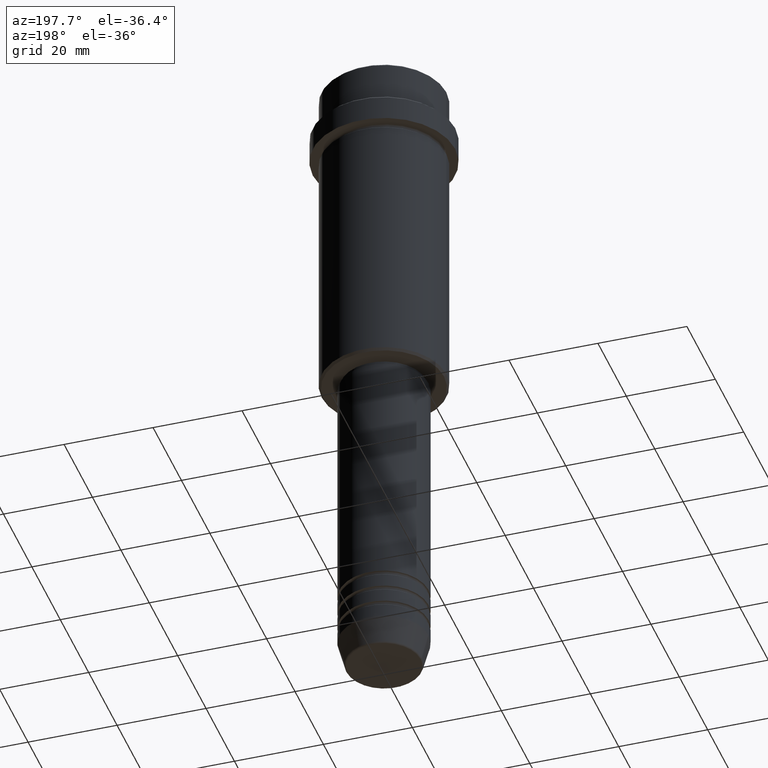
[diagram: clean part render]
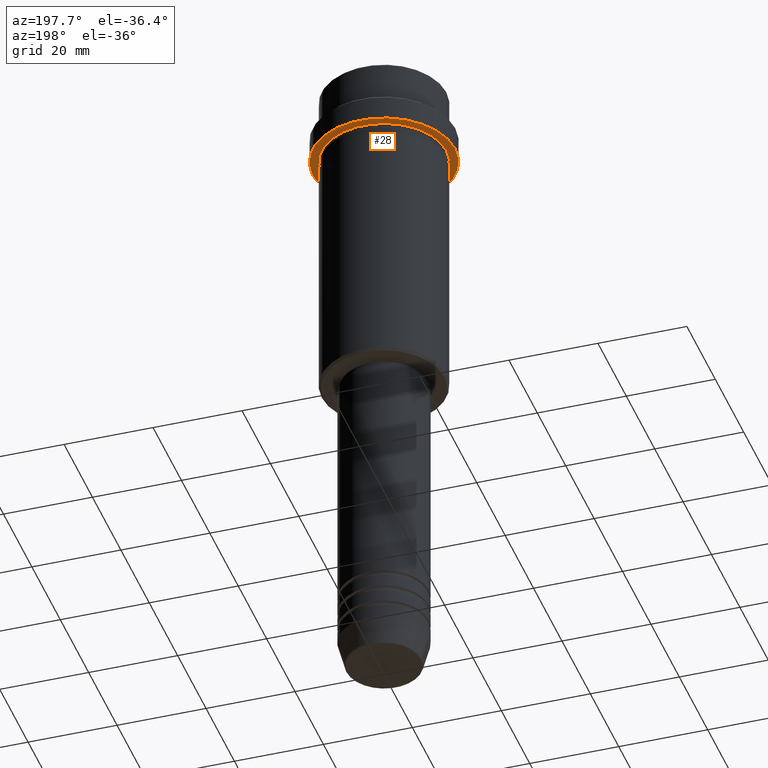
[diagram: same view with one face highlighted and labeled with its STEP entity id]
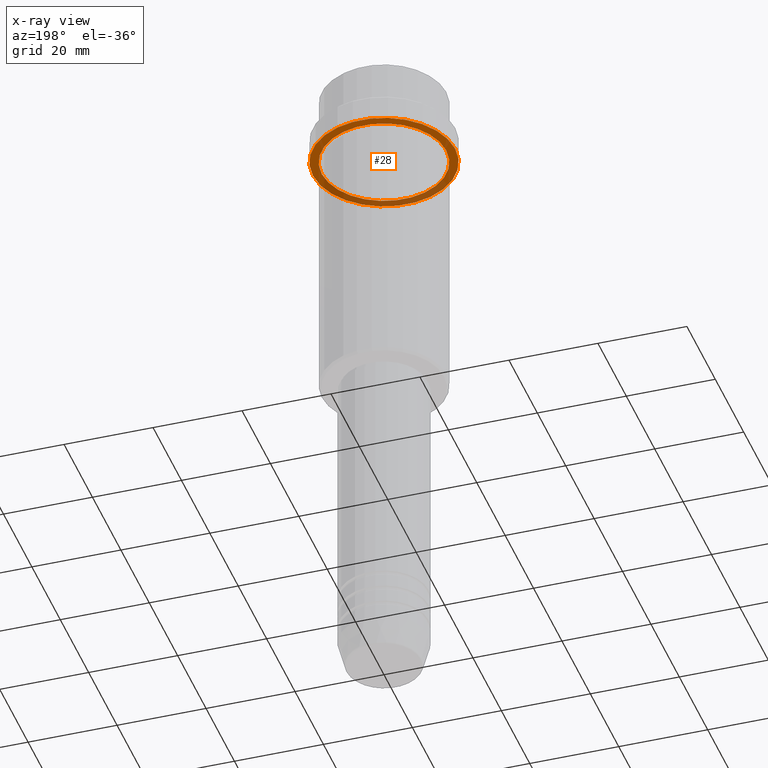
[diagram: x-ray of the same camera — body ghosted, the highlighted face saturated]
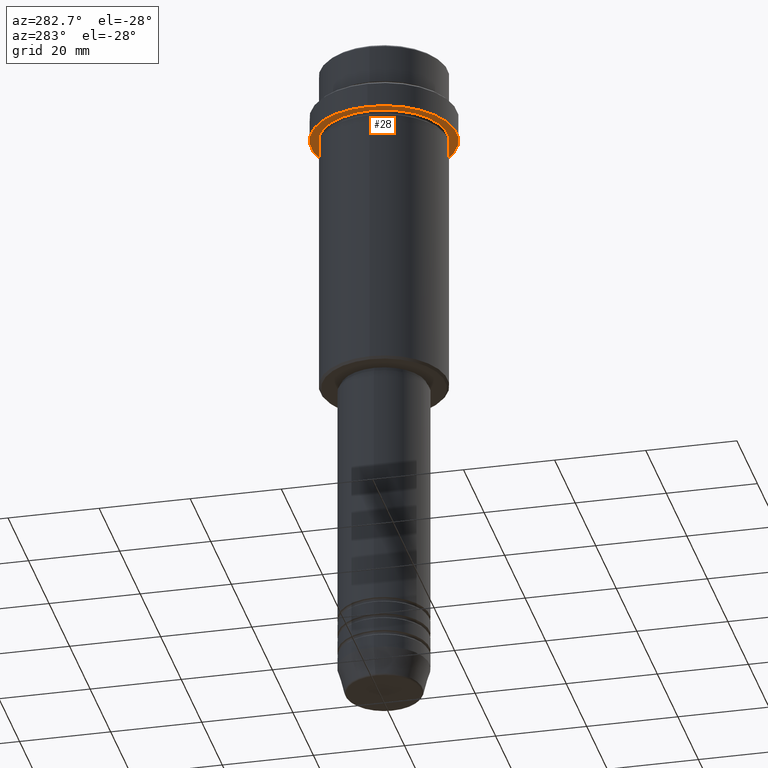
[diagram: same view with one face highlighted and labeled with its STEP entity id]
A machine part, auxiliary view. The second image highlights one B-rep face of the part: STEP entity #28.
The next image is the same camera in x-ray: the body ghosted, the highlighted face saturated — about 34% of this face is hidden behind the body in this view.
A second angle (auxiliary view) of the same face is appended — the face is thin or edge-on in the first view.
In plain terms, the highlighted planar face has unit normal (0, 0, -1).
Its self-contained STEP definition (entity closure, byte-faithful):
#28 = ADVANCED_FACE ( 'NONE', ( #468, #494 ), #159, .T. ) ;
#29 = DIRECTION ( 'NONE',  ( -1.000000000000000000, 0.000000000000000000, 0.000000000000000000 ) ) ;
#36 = CARTESIAN_POINT ( 'NONE',  ( 0.000000000000000000, 15.99999999999998579, -16.00000000000000000 ) ) ;
#52 = DIRECTION ( 'NONE',  ( -1.000000000000000000, 0.000000000000000000, -0.000000000000000000 ) ) ;
#53 = CARTESIAN_POINT ( 'NONE',  ( 0.000000000000000000, 0.000000000000000000, -16.00000000000000000 ) ) ;
#67 = CARTESIAN_POINT ( 'NONE',  ( -15.99999999999998579, 1.959434878635763554E-15, -16.00000000000000000 ) ) ;
#86 = VERTEX_POINT ( 'NONE', #67 ) ;
#144 = CIRCLE ( 'NONE', #952, 13.99999999999997868 ) ;
#159 = PLANE ( 'NONE',  #459 ) ;
#247 = CARTESIAN_POINT ( 'NONE',  ( 15.99999999999998579, 0.000000000000000000, -16.00000000000000000 ) ) ;
#253 = EDGE_CURVE ( 'NONE', #501, #386, #144, .T. ) ;
#271 = DIRECTION ( 'NONE',  ( -0.000000000000000000, -0.000000000000000000, 1.000000000000000000 ) ) ;
#336 = DIRECTION ( 'NONE',  ( -0.000000000000000000, -0.000000000000000000, 1.000000000000000000 ) ) ;
#369 = ORIENTED_EDGE ( 'NONE', *, *, #253, .T. ) ;
#375 = DIRECTION ( 'NONE',  ( -1.000000000000000000, 0.000000000000000000, 0.000000000000000000 ) ) ;
#386 = VERTEX_POINT ( 'NONE', #1140 ) ;
#459 = AXIS2_PLACEMENT_3D ( 'NONE', #36, #1032, #52 ) ;
#468 = FACE_BOUND ( 'NONE', #1128, .T. ) ;
#494 = FACE_OUTER_BOUND ( 'NONE', #1369, .T. ) ;
#501 = VERTEX_POINT ( 'NONE', #798 ) ;
#524 = ORIENTED_EDGE ( 'NONE', *, *, #1072, .F. ) ;
#606 = AXIS2_PLACEMENT_3D ( 'NONE', #53, #1257, #375 ) ;
#662 = CARTESIAN_POINT ( 'NONE',  ( 0.000000000000000000, 0.000000000000000000, -16.00000000000000000 ) ) ;
#677 = CIRCLE ( 'NONE', #606, 13.99999999999997868 ) ;
#683 = EDGE_CURVE ( 'NONE', #86, #958, #1197, .T. ) ;
#700 = ORIENTED_EDGE ( 'NONE', *, *, #683, .F. ) ;
#762 = CIRCLE ( 'NONE', #835, 15.99999999999998579 ) ;
#798 = CARTESIAN_POINT ( 'NONE',  ( 13.99999999999997868, 1.714505518806292074E-15, -16.00000000000000000 ) ) ;
#835 = AXIS2_PLACEMENT_3D ( 'NONE', #1180, #271, #1151 ) ;
#896 = DIRECTION ( 'NONE',  ( -0.000000000000000000, -0.000000000000000000, 1.000000000000000000 ) ) ;
#933 = ORIENTED_EDGE ( 'NONE', *, *, #1297, .T. ) ;
#952 = AXIS2_PLACEMENT_3D ( 'NONE', #662, #896, #29 ) ;
#958 = VERTEX_POINT ( 'NONE', #247 ) ;
#988 = CARTESIAN_POINT ( 'NONE',  ( 0.000000000000000000, 0.000000000000000000, -16.00000000000000000 ) ) ;
#1032 = DIRECTION ( 'NONE',  ( 0.000000000000000000, 0.000000000000000000, -1.000000000000000000 ) ) ;
#1038 = AXIS2_PLACEMENT_3D ( 'NONE', #988, #336, #1091 ) ;
#1072 = EDGE_CURVE ( 'NONE', #958, #86, #762, .T. ) ;
#1091 = DIRECTION ( 'NONE',  ( 1.000000000000000000, 0.000000000000000000, 0.000000000000000000 ) ) ;
#1128 = EDGE_LOOP ( 'NONE', ( #933, #369 ) ) ;
#1140 = CARTESIAN_POINT ( 'NONE',  ( -13.99999999999997868, 0.000000000000000000, -16.00000000000000000 ) ) ;
#1151 = DIRECTION ( 'NONE',  ( 1.000000000000000000, 0.000000000000000000, 0.000000000000000000 ) ) ;
#1180 = CARTESIAN_POINT ( 'NONE',  ( 0.000000000000000000, 0.000000000000000000, -16.00000000000000000 ) ) ;
#1197 = CIRCLE ( 'NONE', #1038, 15.99999999999998579 ) ;
#1257 = DIRECTION ( 'NONE',  ( -0.000000000000000000, -0.000000000000000000, 1.000000000000000000 ) ) ;
#1297 = EDGE_CURVE ( 'NONE', #386, #501, #677, .T. ) ;
#1369 = EDGE_LOOP ( 'NONE', ( #524, #700 ) ) ;